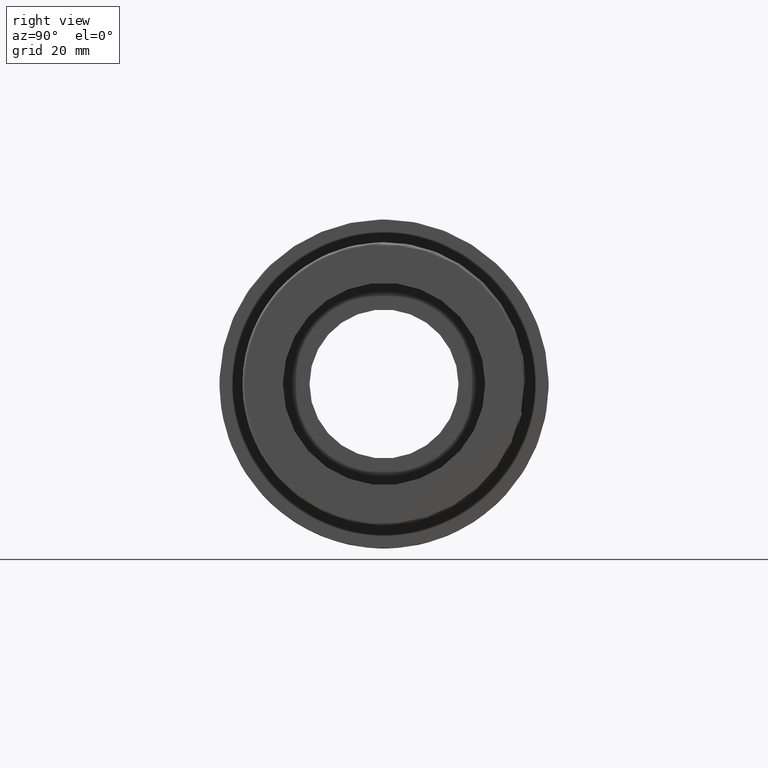
[diagram: clean part render]
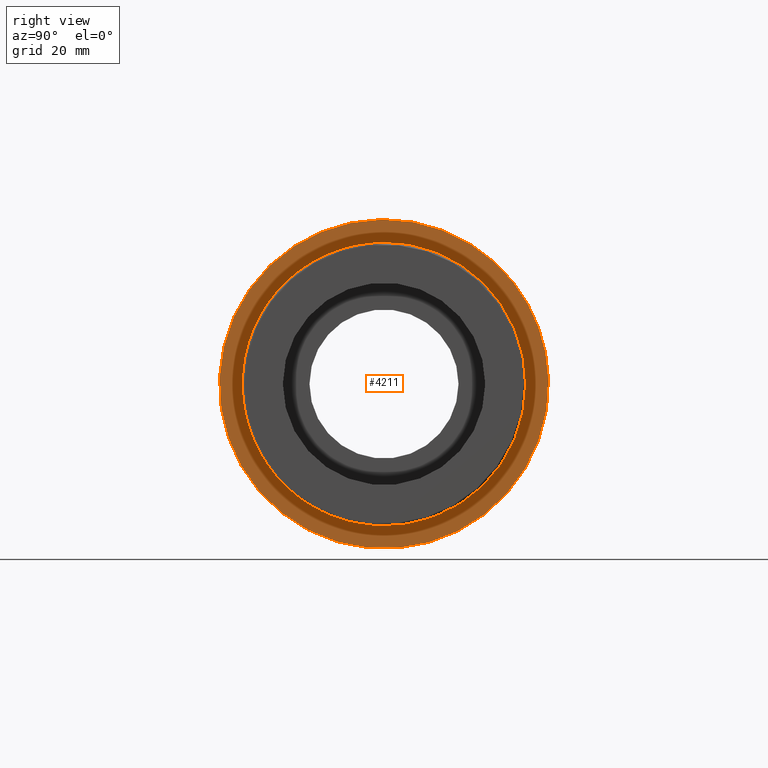
[diagram: same view with one face highlighted and labeled with its STEP entity id]
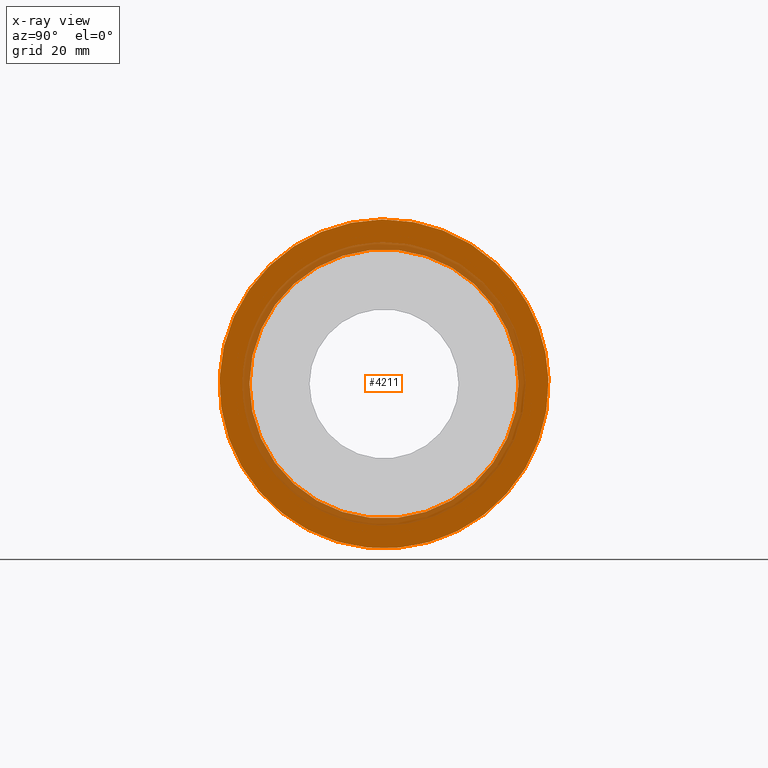
[diagram: x-ray of the same camera — body ghosted, the highlighted face saturated]
A machine part, right view. The second image highlights one B-rep face of the part: STEP entity #4211.
The next image is the same camera in x-ray: the body ghosted, the highlighted face saturated — about 23% of this face is hidden behind the body in this view.
In plain terms, the highlighted planar face has unit normal (1, 0, 0).
Its self-contained STEP definition (entity closure, byte-faithful):
#68=FACE_BOUND('',#1230,.T.);
#142=PLANE('',#4642);
#968=FACE_OUTER_BOUND('',#1229,.T.);
#1229=EDGE_LOOP('',(#3873));
#1230=EDGE_LOOP('',(#3874));
#1498=CIRCLE('',#4398,46.05);
#1638=CIRCLE('',#4643,37.67624);
#1834=VERTEX_POINT('',#6788);
#2063=VERTEX_POINT('',#8891);
#2316=EDGE_CURVE('',#1834,#1834,#1498,.T.);
#2687=EDGE_CURVE('',#2063,#2063,#1638,.T.);
#3873=ORIENTED_EDGE('',*,*,#2316,.T.);
#3874=ORIENTED_EDGE('',*,*,#2687,.F.);
#4211=ADVANCED_FACE('',(#968,#68),#142,.T.);
#4398=AXIS2_PLACEMENT_3D('',#6789,#5109,#5110);
#4642=AXIS2_PLACEMENT_3D('',#8890,#5735,#5736);
#4643=AXIS2_PLACEMENT_3D('',#8892,#5737,#5738);
#5109=DIRECTION('center_axis',(1.,0.,0.));
#5110=DIRECTION('ref_axis',(0.,0.,-1.));
#5735=DIRECTION('center_axis',(1.,0.,0.));
#5736=DIRECTION('ref_axis',(0.,0.,-1.));
#5737=DIRECTION('center_axis',(1.,0.,0.));
#5738=DIRECTION('ref_axis',(0.,0.,-1.));
#6788=CARTESIAN_POINT('',(-52.93,31.2337163406062,33.8386977224974));
#6789=CARTESIAN_POINT('Origin',(-52.93,0.,0.));
#8890=CARTESIAN_POINT('Origin',(-52.93,37.67624,0.));
#8891=CARTESIAN_POINT('',(-52.93,25.3067755196961,27.9117569015873));
#8892=CARTESIAN_POINT('Origin',(-52.93,0.,0.));